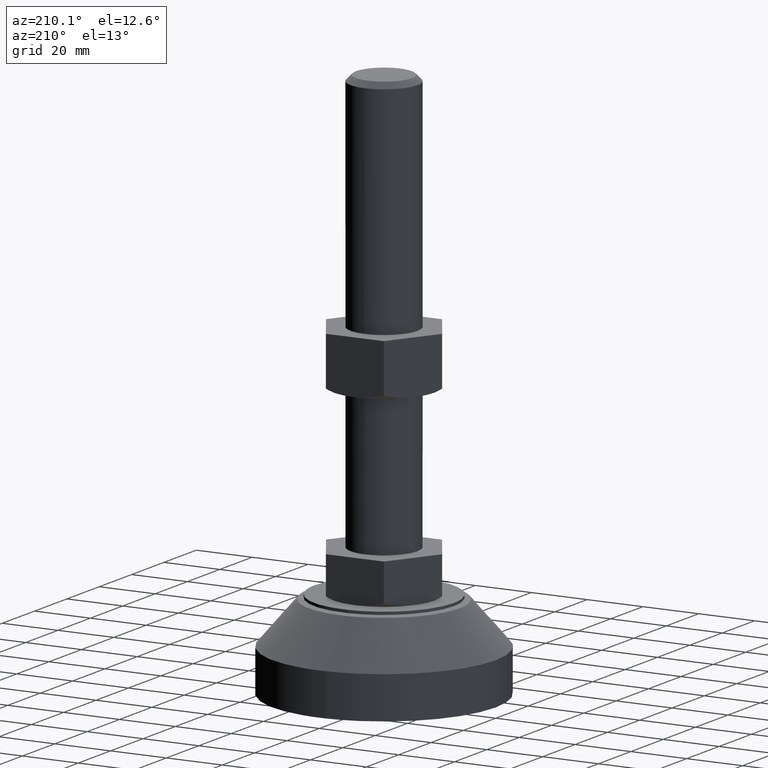
[diagram: clean part render]
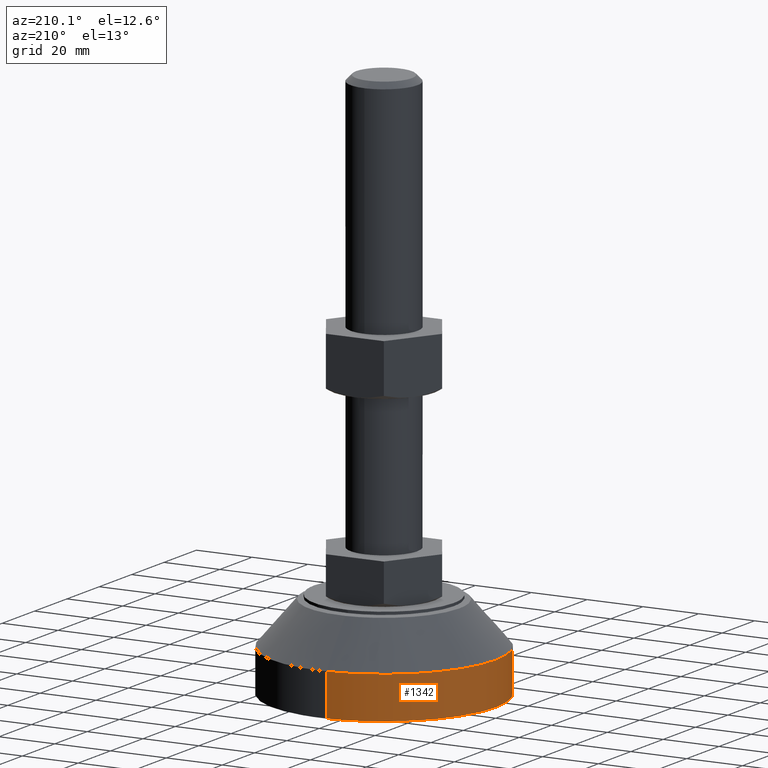
[diagram: same view with one face highlighted and labeled with its STEP entity id]
A machine part, auxiliary view. The second image highlights one B-rep face of the part: STEP entity #1342.
In plain terms, the highlighted face is a freeform B-spline surface patch.
Its self-contained STEP definition (entity closure, byte-faithful):
#1148=CARTESIAN_POINT('',(-40.0,0.0,-5.684342E-014));
#1149=VERTEX_POINT('',#1148);
#1150=CARTESIAN_POINT('',(-2.441895194581661,39.925394773959582,-5.614953E-014));
#1151=VERTEX_POINT('',#1150);
#1152=CARTESIAN_POINT('',(-40.0,0.0,-5.684342E-014));
#1153=CARTESIAN_POINT('',(-39.999999999999176,37.628286475828965,-5.649647E-014));
#1154=CARTESIAN_POINT('',(-2.441895194581661,39.925394773959589,-5.614953E-014));
#1162=(BOUNDED_CURVE()B_SPLINE_CURVE(2,(#1152,#1153,#1154),.UNSPECIFIED.,.F.,.U.)B_SPLINE_CURVE_WITH_KNOTS((3,3),(0.0,0.239333162713308),.UNSPECIFIED.)CURVE()GEOMETRIC_REPRESENTATION_ITEM()RATIONAL_B_SPLINE_CURVE((1.0,0.719603758416382,0.976072471321820))REPRESENTATION_ITEM(''));
#1163=EDGE_CURVE('',#1149,#1151,#1162,.T.);
#1182=CARTESIAN_POINT('',(2.441895194581661,-39.925394773959582,-5.614953E-014));
#1183=VERTEX_POINT('',#1182);
#1197=CARTESIAN_POINT('',(2.441895194581661,-39.925394773959589,-5.614953E-014));
#1198=CARTESIAN_POINT('',(1.222087273505633,-39.999999999973447,-5.615950E-014));
#1199=CARTESIAN_POINT('',(-1.598295E-012,-39.999999999973852,-5.617010E-014));
#1200=CARTESIAN_POINT('',(-40.000000000000774,-39.999999999987324,-5.651705E-014));
#1201=CARTESIAN_POINT('',(-40.0,0.0,-5.684342E-014));
#1209=(BOUNDED_CURVE()B_SPLINE_CURVE(2,(#1197,#1198,#1199,#1200,#1201),.UNSPECIFIED.,.F.,.U.)B_SPLINE_CURVE_WITH_KNOTS((3,2,3),(0.739333162713308,0.750000000000000,1.0),.UNSPECIFIED.)CURVE()GEOMETRIC_REPRESENTATION_ITEM()RATIONAL_B_SPLINE_CURVE((0.976072471321820,0.987503022770166,1.0,0.707106781186548,1.0))REPRESENTATION_ITEM(''));
#1210=EDGE_CURVE('',#1183,#1149,#1209,.T.);
#1239=CARTESIAN_POINT('',(-2.441918102491334,39.925393332768117,15.000000046194581));
#1240=VERTEX_POINT('',#1239);
#1258=CARTESIAN_POINT('',(2.441918102491338,-39.925393332768117,15.000000046194581));
#1259=VERTEX_POINT('',#1258);
#1273=CARTESIAN_POINT('',(2.441918102491338,-39.925393332768117,15.000000046194581));
#1274=CARTESIAN_POINT('',(2.441895194581661,-39.925394773959582,-5.614953E-014));
#1275=QUASI_UNIFORM_CURVE('',1,(#1273,#1274),.UNSPECIFIED.,.F.,.U.);
#1276=EDGE_CURVE('',#1259,#1183,#1275,.T.);
#1280=CARTESIAN_POINT('',(-2.441918102491334,39.925393332768117,15.000000046194581));
#1281=CARTESIAN_POINT('',(-2.441895194581661,39.925394773959582,-5.614953E-014));
#1282=QUASI_UNIFORM_CURVE('',1,(#1280,#1281),.UNSPECIFIED.,.F.,.U.);
#1283=EDGE_CURVE('',#1240,#1151,#1282,.T.);
#1288=CARTESIAN_POINT('',(2.441941581394279,-39.925391936874668,15.374999999999719));
#1289=CARTESIAN_POINT('',(-37.483450355480386,-42.367333518268957,15.374999999999719));
#1290=CARTESIAN_POINT('',(-39.925391936874668,-2.441941581394279,15.374999999999719));
#1291=CARTESIAN_POINT('',(-42.367333518268957,37.483450355480386,15.374999999999719));
#1292=CARTESIAN_POINT('',(-2.441941581394279,39.925391936874668,15.374999999999719));
#1293=CARTESIAN_POINT('',(2.441941581394279,-39.925391936874668,-0.384375000000052));
#1294=CARTESIAN_POINT('',(-37.483450355480386,-42.367333518268957,-0.384375000000052));
#1295=CARTESIAN_POINT('',(-39.925391936874668,-2.441941581394279,-0.384375000000052));
#1296=CARTESIAN_POINT('',(-42.367333518268957,37.483450355480386,-0.384375000000052));
#1297=CARTESIAN_POINT('',(-2.441941581394279,39.925391936874668,-0.384375000000052));
#1305=(BOUNDED_SURFACE()B_SPLINE_SURFACE(2,1,((#1288,#1293),(#1289,#1294),(#1290,#1295),(#1291,#1296),(#1292,#1297)),.UNSPECIFIED.,.F.,.F.,.U.)B_SPLINE_SURFACE_WITH_KNOTS((3,2,3),(2,2),(0.0,66.274169979695188,132.548339959390400),(0.0,15.759374999999769),.UNSPECIFIED.)GEOMETRIC_REPRESENTATION_ITEM()RATIONAL_B_SPLINE_SURFACE(((1.0,1.0),(0.707106781186548,0.707106781186548),(1.0,1.0),(0.707106781186548,0.707106781186548),(1.0,1.0)))REPRESENTATION_ITEM('')SURFACE());
#1306=CARTESIAN_POINT('',(-40.0,0.0,14.999999999999719));
#1307=VERTEX_POINT('',#1306);
#1308=CARTESIAN_POINT('',(-40.0,0.0,14.999999999999719));
#1309=CARTESIAN_POINT('',(-40.000011737006552,37.628286272452499,15.000000023097160));
#1310=CARTESIAN_POINT('',(-2.441918102491334,39.925393332768124,15.000000046194581));
#1318=(BOUNDED_CURVE()B_SPLINE_CURVE(2,(#1308,#1309,#1310),.UNSPECIFIED.,.F.,.U.)B_SPLINE_CURVE_WITH_KNOTS((3,3),(0.0,0.239333165159862),.UNSPECIFIED.)CURVE()GEOMETRIC_REPRESENTATION_ITEM()RATIONAL_B_SPLINE_CURVE((1.0,0.719603755550065,0.976072476565261))REPRESENTATION_ITEM(''));
#1319=EDGE_CURVE('',#1307,#1240,#1318,.T.);
#1320=ORIENTED_EDGE('',*,*,#1319,.T.);
#1321=ORIENTED_EDGE('',*,*,#1283,.T.);
#1322=ORIENTED_EDGE('',*,*,#1163,.F.);
#1323=ORIENTED_EDGE('',*,*,#1210,.F.);
#1324=ORIENTED_EDGE('',*,*,#1276,.F.);
#1325=CARTESIAN_POINT('',(2.441918102491338,-39.925393332768124,15.000000046194582));
#1326=CARTESIAN_POINT('',(1.222110126344988,-39.999998545366125,15.000000045530753));
#1327=CARTESIAN_POINT('',(0.000022778092797,-39.999998567911220,15.000000044825070));
#1328=CARTESIAN_POINT('',(-39.999988958913747,-39.999999305832326,15.000000021727647));
#1329=CARTESIAN_POINT('',(-40.0,0.0,14.999999999999719));
#1337=(BOUNDED_CURVE()B_SPLINE_CURVE(2,(#1325,#1326,#1327,#1328,#1329),.UNSPECIFIED.,.F.,.U.)B_SPLINE_CURVE_WITH_KNOTS((3,2,3),(0.739333165159862,0.750000000000000,1.0),.UNSPECIFIED.)CURVE()GEOMETRIC_REPRESENTATION_ITEM()RATIONAL_B_SPLINE_CURVE((0.976072476565261,0.987503025636482,1.0,0.707106781186548,1.0))REPRESENTATION_ITEM(''));
#1338=EDGE_CURVE('',#1259,#1307,#1337,.T.);
#1339=ORIENTED_EDGE('',*,*,#1338,.T.);
#1340=EDGE_LOOP('',(#1320,#1321,#1322,#1323,#1324,#1339));
#1341=FACE_OUTER_BOUND('',#1340,.T.);
#1342=ADVANCED_FACE('',(#1341),#1305,.T.);